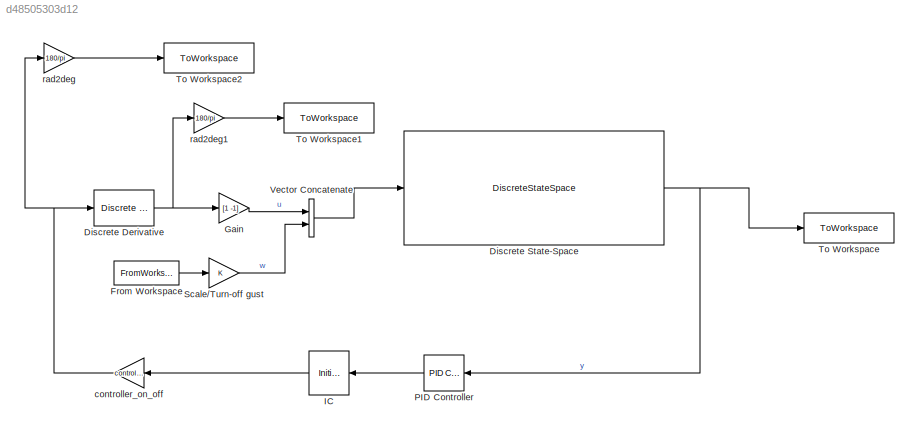
MODEL slx_d48505303d12
KIND model
CONFIG AbsTol = auto
CONFIG EnableMultiTasking = off
CONFIG FixedStep = input_settings.dt
CONFIG MaxStep = auto
CONFIG MinStep = auto
CONFIG RelTol = 1e-3
CONFIG SampleTimeConstraint = Unconstrained
CONFIG SolverName = FixedStepAuto
CONFIG StartTime = 0.0
CONFIG StopTime = input_settings.flight_time
BLOCK [Reference] Discrete Derivative  REF=simulink/Discrete/Discrete Derivative
  Ports = [1, 1]
  SourceBlock = simulink/Discrete/Discrete Derivative
  SourceType = Discrete Derivative
BLOCK [DiscreteStateSpace] Discrete State-Space
  A = state_space_system.A
  B = state_space_system.B
  C = state_space_system.C
  D = state_space_system.D
  SampleTime = -1
BLOCK [FromWorkspace] From Workspace
  VariableName = gust
BLOCK [Gain] Gain
  Gain = [1 -1]
BLOCK [InitialCondition] IC
  Value = zeros(input_settings.num_control_surfaces,1)
BLOCK [Reference] PID Controller  REF=pid_lib/PID Controller
  Ports = [1, 1]
  SourceBlock = pid_lib/PID Controller
  SourceType = PID 1dof
BLOCK [Gain] Scale//Turn-off gust
BLOCK [ToWorkspace] To Workspace
  FixptAsFi = on
  MaxDataPoints = inf
  Ports = [1]
  SampleTime = -1
  SaveFormat = Timeseries
  VariableName = actual_output
BLOCK [ToWorkspace] To Workspace1
  FixptAsFi = on
  MaxDataPoints = inf
  Ports = [1]
  SampleTime = -1
  SaveFormat = Timeseries
  VariableName = delta_dot
BLOCK [ToWorkspace] To Workspace2
  FixptAsFi = on
  MaxDataPoints = inf
  Ports = [1]
  SampleTime = -1
  SaveFormat = Timeseries
  VariableName = delta
BLOCK [Concatenate] Vector Concatenate
  Ports = [2, 1]
BLOCK [Gain] controller_on_off
  Gain = controller_on
BLOCK [Gain] rad2deg
  Gain = 180/pi
BLOCK [Gain] rad2deg1
  Gain = 180/pi
NET Discrete Derivative:1 -> Gain:1, rad2deg1:1
NET Discrete State-Space:1 -> PID Controller:1, To Workspace:1
LINE From Workspace:1 -> Scale//Turn-off gust:1
LINE Gain:1 -> Vector Concatenate:1
LINE IC:1 -> controller_on_off:1
LINE PID Controller:1 -> IC:1
LINE Scale//Turn-off gust:1 -> Vector Concatenate:2
LINE Vector Concatenate:1 -> Discrete State-Space:1
NET controller_on_off:1 -> Discrete Derivative:1, rad2deg:1
LINE rad2deg1:1 -> To Workspace1:1
LINE rad2deg:1 -> To Workspace2:1
note: NET lines group one-source signal fan-out (src -> all destinations, sorted); 1:1 wires keep LINE
